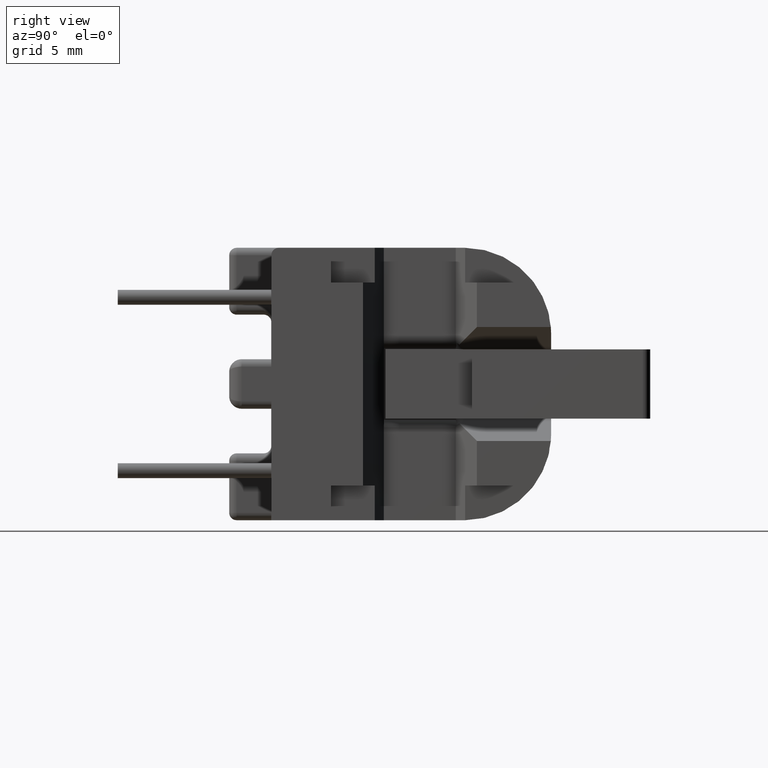
[diagram: clean part render]
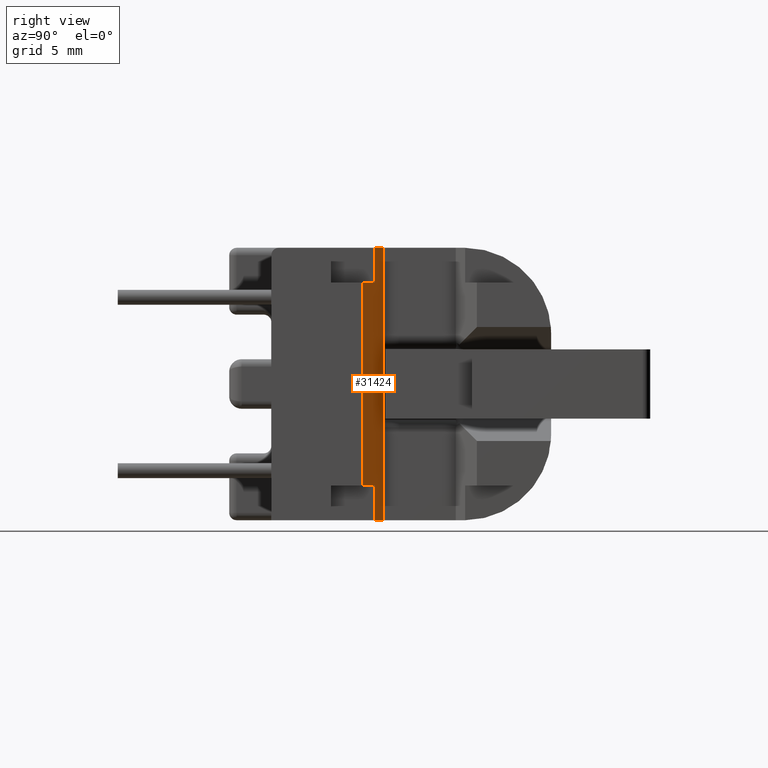
[diagram: same view with one face highlighted and labeled with its STEP entity id]
A machine part, right view. The second image highlights one B-rep face of the part: STEP entity #31424.
In plain terms, the highlighted planar face has unit normal (-0.3677, -0.93, 0).
Its self-contained STEP definition (entity closure, byte-faithful):
#187 = VERTEX_POINT ( 'NONE', #13213 ) ;
#346 = EDGE_CURVE ( 'NONE', #30128, #35491, #5046, .T. ) ;
#625 = CARTESIAN_POINT ( 'NONE',  ( 4.128147453515078169, -1.471011783947819396, 5.499999999999999112 ) ) ;
#1586 = CARTESIAN_POINT ( 'NONE',  ( 4.075000000000001954, -1.449999999999999956, -4.099999999999999645 ) ) ;
#3482 = CARTESIAN_POINT ( 'NONE',  ( 5.025000000000002132, -1.825581395348837122, 4.099999999999998757 ) ) ;
#3526 = VERTEX_POINT ( 'NONE', #36023 ) ;
#4073 = VECTOR ( 'NONE', #6093, 1000.000000000000000 ) ;
#4259 = LINE ( 'NONE', #24640, #9873 ) ;
#5046 = LINE ( 'NONE', #8635, #14891 ) ;
#6093 = DIRECTION ( 'NONE',  ( 3.782612041937252243E-16, -1.495451272393798310E-16, 1.000000000000000000 ) ) ;
#6719 = DIRECTION ( 'NONE',  ( 0.9299607201739313878, -0.3676588893710893147, 6.442287944884732170E-17 ) ) ;
#7615 = DIRECTION ( 'NONE',  ( -0.3676588893710893147, -0.9299607201739313878, 0.0000000000000000000 ) ) ;
#7655 = ORIENTED_EDGE ( 'NONE', *, *, #28688, .F. ) ;
#8006 = ORIENTED_EDGE ( 'NONE', *, *, #15401, .F. ) ;
#8398 = ORIENTED_EDGE ( 'NONE', *, *, #37469, .F. ) ;
#8518 = DIRECTION ( 'NONE',  ( 0.9299607201739313878, -0.3676588893710893147, 0.0000000000000000000 ) ) ;
#8635 = CARTESIAN_POINT ( 'NONE',  ( 16.17006545513980953, -6.231770063659924475, 5.499999999999999112 ) ) ;
#8865 = VERTEX_POINT ( 'NONE', #9153 ) ;
#9153 = CARTESIAN_POINT ( 'NONE',  ( 6.225000000000000533, -2.299999999999998934, -4.099999999999999645 ) ) ;
#9270 = CARTESIAN_POINT ( 'NONE',  ( 4.075000000000001954, -1.449999999999999956, 4.099999999999997868 ) ) ;
#9873 = VECTOR ( 'NONE', #6719, 1000.000000000000114 ) ;
#10494 = CARTESIAN_POINT ( 'NONE',  ( 4.075000000000001954, -1.449999999999999956, -5.300000000000000711 ) ) ;
#10989 = FACE_OUTER_BOUND ( 'NONE', #19752, .T. ) ;
#12301 = VECTOR ( 'NONE', #29034, 1000.000000000000000 ) ;
#12351 = CARTESIAN_POINT ( 'NONE',  ( 4.128147453515075505, -1.471011783947819618, -5.499999999999996447 ) ) ;
#12650 = ORIENTED_EDGE ( 'NONE', *, *, #346, .T. ) ;
#13158 = EDGE_CURVE ( 'NONE', #35917, #30128, #37332, .T. ) ;
#13213 = CARTESIAN_POINT ( 'NONE',  ( 5.025000000000002132, -1.825581395348836899, -4.099999999999999645 ) ) ;
#13289 = ORIENTED_EDGE ( 'NONE', *, *, #38552, .F. ) ;
#13609 = DIRECTION ( 'NONE',  ( 0.9299607201739313878, -0.3676588893710893147, 0.0000000000000000000 ) ) ;
#14891 = VECTOR ( 'NONE', #8518, 1000.000000000000114 ) ;
#15257 = VECTOR ( 'NONE', #17248, 1000.000000000000000 ) ;
#15401 = EDGE_CURVE ( 'NONE', #35917, #3526, #4259, .T. ) ;
#15656 = CARTESIAN_POINT ( 'NONE',  ( 5.025000000000003020, -1.825581395348837566, 5.499999999999999112 ) ) ;
#16044 = DIRECTION ( 'NONE',  ( 7.228014483236699514E-16, -2.857587121279626639E-16, 1.000000000000000000 ) ) ;
#17248 = DIRECTION ( 'NONE',  ( -7.228014483236699514E-16, 2.857587121279626639E-16, 1.000000000000000000 ) ) ;
#17449 = CARTESIAN_POINT ( 'NONE',  ( 4.128147453515075505, -1.471011783947819618, -5.300000000000000711 ) ) ;
#19288 = CARTESIAN_POINT ( 'NONE',  ( 5.024999999999995914, -1.825581395348834457, -5.300000000000001599 ) ) ;
#19489 = PLANE ( 'NONE',  #21454 ) ;
#19752 = EDGE_LOOP ( 'NONE', ( #8006, #36180, #12650, #32339, #7655, #13289, #31791, #8398 ) ) ;
#20665 = VECTOR ( 'NONE', #27026, 1000.000000000000114 ) ;
#20968 = EDGE_CURVE ( 'NONE', #23311, #35491, #23334, .T. ) ;
#21454 = AXIS2_PLACEMENT_3D ( 'NONE', #10494, #7615, #13609 ) ;
#23311 = VERTEX_POINT ( 'NONE', #3482 ) ;
#23334 = LINE ( 'NONE', #19288, #33596 ) ;
#23353 = CARTESIAN_POINT ( 'NONE',  ( 5.025000000000002132, -1.825581395348837122, -5.299999999999999822 ) ) ;
#24640 = CARTESIAN_POINT ( 'NONE',  ( 4.075000000000001954, -1.449999999999999956, -5.499999999999996447 ) ) ;
#25520 = VERTEX_POINT ( 'NONE', #36843 ) ;
#27026 = DIRECTION ( 'NONE',  ( -0.9299607201739313878, 0.3676588893710893147, 0.0000000000000000000 ) ) ;
#27310 = VECTOR ( 'NONE', #37430, 1000.000000000000114 ) ;
#28688 = EDGE_CURVE ( 'NONE', #25520, #23311, #32382, .T. ) ;
#29034 = DIRECTION ( 'NONE',  ( -0.0000000000000000000, -0.0000000000000000000, 1.000000000000000000 ) ) ;
#30128 = VERTEX_POINT ( 'NONE', #625 ) ;
#31403 = EDGE_CURVE ( 'NONE', #187, #8865, #37169, .T. ) ;
#31424 = ADVANCED_FACE ( 'NONE', ( #10989 ), #19489, .F. ) ;
#31772 = CARTESIAN_POINT ( 'NONE',  ( 6.225000000000001421, -2.299999999999999822, -5.300000000000000711 ) ) ;
#31791 = ORIENTED_EDGE ( 'NONE', *, *, #31403, .F. ) ;
#32339 = ORIENTED_EDGE ( 'NONE', *, *, #20968, .F. ) ;
#32382 = LINE ( 'NONE', #9270, #20665 ) ;
#32414 = LINE ( 'NONE', #31772, #12301 ) ;
#33596 = VECTOR ( 'NONE', #16044, 1000.000000000000000 ) ;
#35491 = VERTEX_POINT ( 'NONE', #15656 ) ;
#35917 = VERTEX_POINT ( 'NONE', #12351 ) ;
#36023 = CARTESIAN_POINT ( 'NONE',  ( 5.025000000000002132, -1.825581395348837122, -5.499999999999996447 ) ) ;
#36180 = ORIENTED_EDGE ( 'NONE', *, *, #13158, .T. ) ;
#36843 = CARTESIAN_POINT ( 'NONE',  ( 6.225000000000002309, -2.300000000000000711, 4.099999999999997868 ) ) ;
#37169 = LINE ( 'NONE', #1586, #27310 ) ;
#37265 = LINE ( 'NONE', #23353, #15257 ) ;
#37332 = LINE ( 'NONE', #17449, #4073 ) ;
#37430 = DIRECTION ( 'NONE',  ( 0.9299607201739313878, -0.3676588893710893147, 0.0000000000000000000 ) ) ;
#37469 = EDGE_CURVE ( 'NONE', #3526, #187, #37265, .T. ) ;
#38552 = EDGE_CURVE ( 'NONE', #8865, #25520, #32414, .T. ) ;